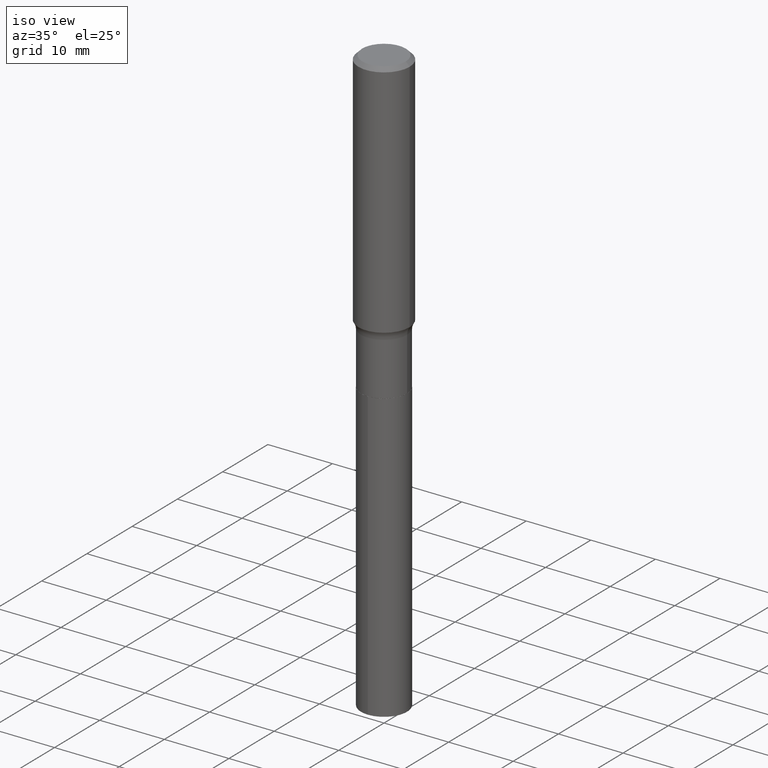
[diagram: clean part render]
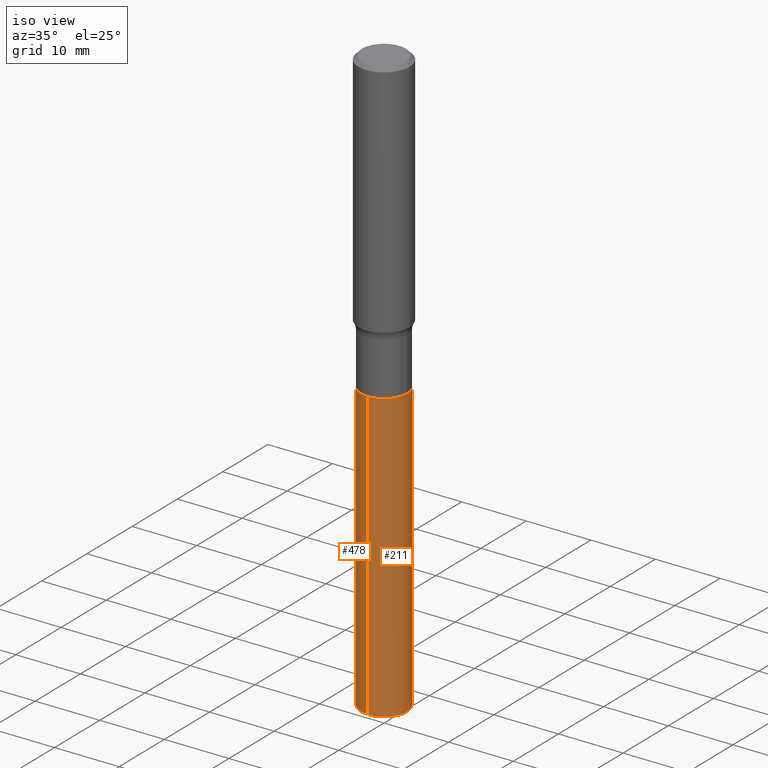
[diagram: same view with one multi-face feature highlighted, each face labeled with its STEP entity id]
A machine part, iso view. The highlighted faces form ONE feature: a constant-radius fillet chain: 2 tangent blend faces with common blend radius 3.5687 mm. The faces share edges in the B-rep.
Their STEP definitions:
[1] entity #211 (Cylinder):
#23 = DIRECTION ( 'NONE',  ( -2.445468190864832708E-29, 3.491482220016842656E-15, 1.000000000000000000 ) ) ;
#24 = ORIENTED_EDGE ( 'NONE', *, *, #158, .F. ) ;
#28 = VERTEX_POINT ( 'NONE', #194 ) ;
#61 = CARTESIAN_POINT ( 'NONE',  ( 9.983125437430286197E-16, 0.1404999999999936300, -1.827900000000000968 ) ) ;
#64 = DIRECTION ( 'NONE',  ( -2.445468190864832708E-29, 3.491482220016842656E-15, 1.000000000000000000 ) ) ;
#72 = EDGE_LOOP ( 'NONE', ( #74, #116, #361, #24 ) ) ;
#73 = DIRECTION ( 'NONE',  ( -2.445468190864832708E-29, 3.491482220016842656E-15, 1.000000000000000000 ) ) ;
#74 = ORIENTED_EDGE ( 'NONE', *, *, #195, .T. ) ;
#88 = EDGE_CURVE ( 'NONE', #224, #149, #390, .T. ) ;
#94 = DIRECTION ( 'NONE',  ( -6.982962677686265922E-15, -1.000000000000000000, 3.888751592404644901E-15 ) ) ;
#102 = CYLINDRICAL_SURFACE ( 'NONE', #117, 0.1405000000000000138 ) ;
#105 = CIRCLE ( 'NONE', #156, 0.1405000000000000138 ) ;
#109 = VERTEX_POINT ( 'NONE', #458 ) ;
#116 = ORIENTED_EDGE ( 'NONE', *, *, #88, .T. ) ;
#117 = AXIS2_PLACEMENT_3D ( 'NONE', #317, #23, #402 ) ;
#134 = DIRECTION ( 'NONE',  ( -2.445468190864832708E-29, 3.491482220016842656E-15, 1.000000000000000000 ) ) ;
#148 = CARTESIAN_POINT ( 'NONE',  ( 4.470072430825811977E-29, -6.382078739271387549E-15, -1.827900000000000524 ) ) ;
#149 = VERTEX_POINT ( 'NONE', #61 ) ;
#156 = AXIS2_PLACEMENT_3D ( 'NONE', #165, #64, #94 ) ;
#158 = EDGE_CURVE ( 'NONE', #109, #28, #206, .T. ) ;
#165 = CARTESIAN_POINT ( 'NONE',  ( 8.756490347814546766E-29, -1.250195059065504114E-14, -3.580700520162503953 ) ) ;
#194 = CARTESIAN_POINT ( 'NONE',  ( -9.811062562148757365E-16, -0.1405000000000063975, -1.827899999999999858 ) ) ;
#195 = EDGE_CURVE ( 'NONE', #109, #224, #105, .T. ) ;
#206 = LINE ( 'NONE', #287, #280 ) ;
#211 = ADVANCED_FACE ( 'NONE', ( #314 ), #102, .T. ) ;
#213 = CARTESIAN_POINT ( 'NONE',  ( 9.983125437430282253E-16, 0.1404999999999874682, -3.580700520162504397 ) ) ;
#224 = VERTEX_POINT ( 'NONE', #213 ) ;
#280 = VECTOR ( 'NONE', #134, 39.37007874015748143 ) ;
#287 = CARTESIAN_POINT ( 'NONE',  ( -9.811062562148757365E-16, -0.1405000000000063975, -1.827899999999999858 ) ) ;
#292 = DIRECTION ( 'NONE',  ( -6.982962677686265922E-15, -1.000000000000000000, 3.888751592404644901E-15 ) ) ;
#314 = FACE_OUTER_BOUND ( 'NONE', #72, .T. ) ;
#317 = CARTESIAN_POINT ( 'NONE',  ( 4.470072430825811977E-29, -6.382078739271387549E-15, -1.827900000000000524 ) ) ;
#343 = CARTESIAN_POINT ( 'NONE',  ( 9.983125437429854296E-16, 0.1404999999999936300, -1.827900000000000968 ) ) ;
#354 = DIRECTION ( 'NONE',  ( -2.445468190864832708E-29, 3.491482220016842656E-15, 1.000000000000000000 ) ) ;
#361 = ORIENTED_EDGE ( 'NONE', *, *, #366, .F. ) ;
#366 = EDGE_CURVE ( 'NONE', #28, #149, #486, .T. ) ;
#390 = LINE ( 'NONE', #343, #477 ) ;
#402 = DIRECTION ( 'NONE',  ( -6.982962677686265922E-15, -1.000000000000000000, 3.888751592404644901E-15 ) ) ;
#413 = AXIS2_PLACEMENT_3D ( 'NONE', #148, #73, #292 ) ;
#458 = CARTESIAN_POINT ( 'NONE',  ( -9.811062562148327436E-16, -0.1405000000000125038, -3.580700520162503064 ) ) ;
#477 = VECTOR ( 'NONE', #354, 39.37007874015748143 ) ;
#486 = CIRCLE ( 'NONE', #413, 0.1405000000000000138 ) ;
[2] entity #478 (Cylinder):
#11 = DIRECTION ( 'NONE',  ( -6.982962677686265922E-15, -1.000000000000000000, 3.888751592404644901E-15 ) ) ;
#18 = DIRECTION ( 'NONE',  ( -6.982962677686265922E-15, -1.000000000000000000, 3.888751592404644901E-15 ) ) ;
#28 = VERTEX_POINT ( 'NONE', #194 ) ;
#43 = FACE_OUTER_BOUND ( 'NONE', #215, .T. ) ;
#61 = CARTESIAN_POINT ( 'NONE',  ( 9.983125437430286197E-16, 0.1404999999999936300, -1.827900000000000968 ) ) ;
#62 = ORIENTED_EDGE ( 'NONE', *, *, #158, .T. ) ;
#85 = CIRCLE ( 'NONE', #261, 0.1405000000000000138 ) ;
#88 = EDGE_CURVE ( 'NONE', #224, #149, #390, .T. ) ;
#99 = ORIENTED_EDGE ( 'NONE', *, *, #180, .T. ) ;
#104 = EDGE_CURVE ( 'NONE', #149, #28, #150, .T. ) ;
#109 = VERTEX_POINT ( 'NONE', #458 ) ;
#112 = AXIS2_PLACEMENT_3D ( 'NONE', #431, #379, #192 ) ;
#120 = CARTESIAN_POINT ( 'NONE',  ( 4.470072430825811977E-29, -6.382078739271387549E-15, -1.827900000000000524 ) ) ;
#134 = DIRECTION ( 'NONE',  ( -2.445468190864832708E-29, 3.491482220016842656E-15, 1.000000000000000000 ) ) ;
#149 = VERTEX_POINT ( 'NONE', #61 ) ;
#150 = CIRCLE ( 'NONE', #225, 0.1405000000000000138 ) ;
#158 = EDGE_CURVE ( 'NONE', #109, #28, #206, .T. ) ;
#180 = EDGE_CURVE ( 'NONE', #224, #109, #85, .T. ) ;
#183 = ORIENTED_EDGE ( 'NONE', *, *, #104, .F. ) ;
#192 = DIRECTION ( 'NONE',  ( -6.982962677686265922E-15, -1.000000000000000000, 3.888751592404644901E-15 ) ) ;
#194 = CARTESIAN_POINT ( 'NONE',  ( -9.811062562148757365E-16, -0.1405000000000063975, -1.827899999999999858 ) ) ;
#206 = LINE ( 'NONE', #287, #280 ) ;
#213 = CARTESIAN_POINT ( 'NONE',  ( 9.983125437430282253E-16, 0.1404999999999874682, -3.580700520162504397 ) ) ;
#215 = EDGE_LOOP ( 'NONE', ( #415, #99, #62, #183 ) ) ;
#224 = VERTEX_POINT ( 'NONE', #213 ) ;
#225 = AXIS2_PLACEMENT_3D ( 'NONE', #120, #345, #11 ) ;
#261 = AXIS2_PLACEMENT_3D ( 'NONE', #482, #327, #18 ) ;
#270 = CYLINDRICAL_SURFACE ( 'NONE', #112, 0.1405000000000000138 ) ;
#280 = VECTOR ( 'NONE', #134, 39.37007874015748143 ) ;
#287 = CARTESIAN_POINT ( 'NONE',  ( -9.811062562148757365E-16, -0.1405000000000063975, -1.827899999999999858 ) ) ;
#327 = DIRECTION ( 'NONE',  ( -2.445468190864832708E-29, 3.491482220016842656E-15, 1.000000000000000000 ) ) ;
#343 = CARTESIAN_POINT ( 'NONE',  ( 9.983125437429854296E-16, 0.1404999999999936300, -1.827900000000000968 ) ) ;
#345 = DIRECTION ( 'NONE',  ( -2.445468190864832708E-29, 3.491482220016842656E-15, 1.000000000000000000 ) ) ;
#354 = DIRECTION ( 'NONE',  ( -2.445468190864832708E-29, 3.491482220016842656E-15, 1.000000000000000000 ) ) ;
#379 = DIRECTION ( 'NONE',  ( -2.445468190864832708E-29, 3.491482220016842656E-15, 1.000000000000000000 ) ) ;
#390 = LINE ( 'NONE', #343, #477 ) ;
#415 = ORIENTED_EDGE ( 'NONE', *, *, #88, .F. ) ;
#431 = CARTESIAN_POINT ( 'NONE',  ( 4.470072430825811977E-29, -6.382078739271387549E-15, -1.827900000000000524 ) ) ;
#458 = CARTESIAN_POINT ( 'NONE',  ( -9.811062562148327436E-16, -0.1405000000000125038, -3.580700520162503064 ) ) ;
#477 = VECTOR ( 'NONE', #354, 39.37007874015748143 ) ;
#478 = ADVANCED_FACE ( 'NONE', ( #43 ), #270, .T. ) ;
#482 = CARTESIAN_POINT ( 'NONE',  ( 8.756490347814546766E-29, -1.250195059065504114E-14, -3.580700520162503953 ) ) ;